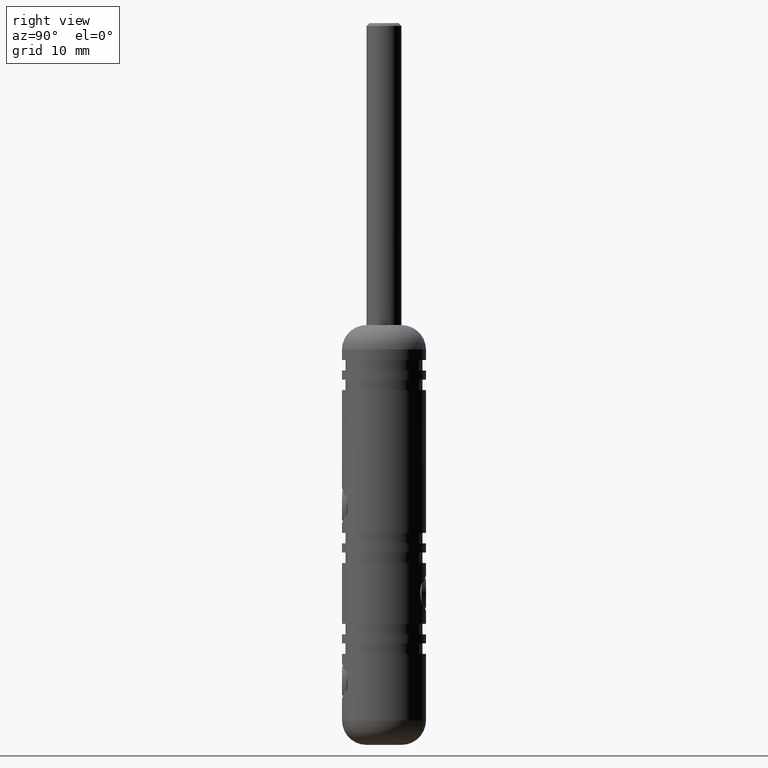
[diagram: clean part render]
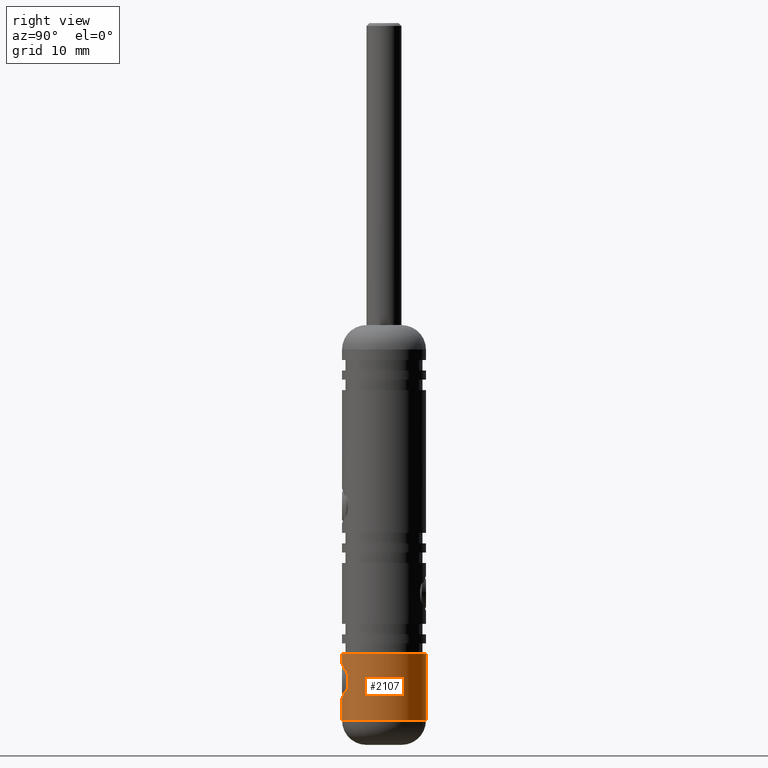
[diagram: same view with one face highlighted and labeled with its STEP entity id]
A machine part, right view. The second image highlights one B-rep face of the part: STEP entity #2107.
In plain terms, the highlighted cylindrical surface (partial cylindrical patch) has radius 6 mm, axis along (0, 0, 1).
Its self-contained STEP definition (entity closure, byte-faithful):
#63 = CARTESIAN_POINT ( 'NONE',  ( 7.347880794884108900E-016, 5.999999999999987600, -26.49999999999999600 ) ) ;
#100 = AXIS2_PLACEMENT_3D ( 'NONE', #5344, #1498, #2830 ) ;
#840 = ORIENTED_EDGE ( 'NONE', *, *, #6714, .F. ) ;
#1082 = EDGE_CURVE ( 'NONE', #4569, #15163, #14730, .T. ) ;
#1337 = CARTESIAN_POINT ( 'NONE',  ( 0.0000000000000000000, -5.999999999999994700, -26.49999999999999600 ) ) ;
#1498 = DIRECTION ( 'NONE',  ( -0.0000000000000000000, 6.241551396031028600E-017, 1.000000000000000000 ) ) ;
#1943 = CARTESIAN_POINT ( 'NONE',  ( 7.347880794884108900E-016, 5.999999999999991100, 30.00000000000000000 ) ) ;
#2021 = CARTESIAN_POINT ( 'NONE',  ( 2.433024516705508200, -5.486245265971621000, -21.51092287905004200 ) ) ;
#2107 = ADVANCED_FACE ( 'NONE', ( #12291 ), #4148, .T. ) ;
#2128 = CARTESIAN_POINT ( 'NONE',  ( 2.499958286588243300, -5.454375176628044400, -20.68457300023110400 ) ) ;
#2182 = CARTESIAN_POINT ( 'NONE',  ( 0.0000000000000000000, -5.999999999999994700, -23.35000000000000500 ) ) ;
#2303 = LINE ( 'NONE', #9792, #5295 ) ;
#2381 = DIRECTION ( 'NONE',  ( -0.0000000000000000000, 6.241551396031028600E-017, 1.000000000000000000 ) ) ;
#2419 = ORIENTED_EDGE ( 'NONE', *, *, #11809, .F. ) ;
#2575 = ORIENTED_EDGE ( 'NONE', *, *, #15019, .T. ) ;
#2830 = DIRECTION ( 'NONE',  ( 0.0000000000000000000, -1.000000000000000000, 0.0000000000000000000 ) ) ;
#3103 = CARTESIAN_POINT ( 'NONE',  ( 1.114788231091694600, -5.897521238554084300, -18.60630985989722700 ) ) ;
#3242 = DIRECTION ( 'NONE',  ( -0.0000000000000000000, 6.241551396031028600E-017, 1.000000000000000000 ) ) ;
#3325 = CARTESIAN_POINT ( 'NONE',  ( 1.654032730495416800, -5.768759283832338300, -22.73162596577045500 ) ) ;
#3366 = CARTESIAN_POINT ( 'NONE',  ( 1.654382943241681400, -5.768663301305688100, -18.96865306849556600 ) ) ;
#3607 = CARTESIAN_POINT ( 'NONE',  ( 0.0000000000000000000, -2.933529156134583500E-015, -17.00000000000000000 ) ) ;
#4148 = CYLINDRICAL_SURFACE ( 'NONE', #100, 5.999999999999991100 ) ;
#4170 = EDGE_CURVE ( 'NONE', #6090, #15163, #2303, .T. ) ;
#4251 = CARTESIAN_POINT ( 'NONE',  ( 0.0000000000000000000, -5.999999999999984900, -17.00000000000000000 ) ) ;
#4531 = AXIS2_PLACEMENT_3D ( 'NONE', #3607, #2381, #13726 ) ;
#4569 = VERTEX_POINT ( 'NONE', #6412 ) ;
#4594 = CARTESIAN_POINT ( 'NONE',  ( 0.0000000000000000000, -3.526476538757531000E-015, -26.49999999999999600 ) ) ;
#4597 = CARTESIAN_POINT ( 'NONE',  ( 1.116433988101044100, -5.897238488634688000, -23.09295871982457300 ) ) ;
#4698 = CARTESIAN_POINT ( 'NONE',  ( 0.6550088422699783500, -5.966320652023279400, -23.26823421433357800 ) ) ;
#5133 = EDGE_CURVE ( 'NONE', #6090, #6102, #14457, .T. ) ;
#5295 = VECTOR ( 'NONE', #11010, 1000.000000000000000 ) ;
#5344 = CARTESIAN_POINT ( 'NONE',  ( 0.0000000000000000000, 0.0000000000000000000, 30.00000000000000000 ) ) ;
#5723 = CARTESIAN_POINT ( 'NONE',  ( 0.3316893159624698700, -5.993028201139781100, -18.36660066118533100 ) ) ;
#5779 = CARTESIAN_POINT ( 'NONE',  ( 2.244635986508915200, -5.564731696079006100, -19.73723607150889600 ) ) ;
#5939 = CARTESIAN_POINT ( 'NONE',  ( 2.418087471178595100, -5.491277066662538800, -20.19431137884591400 ) ) ;
#5993 = CARTESIAN_POINT ( 'NONE',  ( 0.3334989678857753800, -5.992895555958779300, -23.33307707033924300 ) ) ;
#6059 = VECTOR ( 'NONE', #13468, 1000.000000000000000 ) ;
#6090 = VERTEX_POINT ( 'NONE', #1337 ) ;
#6102 = VERTEX_POINT ( 'NONE', #63 ) ;
#6190 = LINE ( 'NONE', #1943, #6798 ) ;
#6412 = CARTESIAN_POINT ( 'NONE',  ( -1.028505488630120000E-020, -5.999999999999993800, -18.35000000000000500 ) ) ;
#6714 = EDGE_CURVE ( 'NONE', #7827, #12697, #12613, .T. ) ;
#6798 = VECTOR ( 'NONE', #3242, 1000.000000000000000 ) ;
#7090 = CARTESIAN_POINT ( 'NONE',  ( 2.500083187475624900, -5.454317928402387500, -21.17895921242124800 ) ) ;
#7187 = CARTESIAN_POINT ( 'NONE',  ( 2.244716869438426100, -5.564698557009178300, -21.96258842965133700 ) ) ;
#7827 = VERTEX_POINT ( 'NONE', #4251 ) ;
#8235 = CARTESIAN_POINT ( 'NONE',  ( -1.028505488630120000E-020, -5.999999999999993800, -18.35000000000000500 ) ) ;
#8443 = CARTESIAN_POINT ( 'NONE',  ( 1.985776905186848600, -5.662680758676486900, -22.37740352867290400 ) ) ;
#8492 = ORIENTED_EDGE ( 'NONE', *, *, #1082, .T. ) ;
#8597 = LINE ( 'NONE', #10894, #6059 ) ;
#8631 = CARTESIAN_POINT ( 'NONE',  ( 0.0000000000000000000, -5.999999999999994700, -23.35000000000000500 ) ) ;
#9278 = CARTESIAN_POINT ( 'NONE',  ( 7.347880794884103000E-016, 5.999999999999979600, -17.00000000000000000 ) ) ;
#9421 = CARTESIAN_POINT ( 'NONE',  ( 0.8121109664669667900, -5.946762593001436100, -18.47989999723239400 ) ) ;
#9531 = CARTESIAN_POINT ( 'NONE',  ( 0.6555787703010417200, -5.966290413473934100, -18.43183818691151600 ) ) ;
#9701 = CARTESIAN_POINT ( 'NONE',  ( 2.166263312547636900, -5.596114381309000400, -19.59167287786404500 ) ) ;
#9749 = CARTESIAN_POINT ( 'NONE',  ( 1.986351737220498600, -5.662472930091971600, -19.32340553465109800 ) ) ;
#9792 = CARTESIAN_POINT ( 'NONE',  ( 0.0000000000000000000, -5.999999999999991100, 30.00000000000000000 ) ) ;
#9800 = CARTESIAN_POINT ( 'NONE',  ( 1.528716671483800100, -5.803628135650790800, -18.86525379076517700 ) ) ;
#10331 = AXIS2_PLACEMENT_3D ( 'NONE', #4594, #12302, #15984 ) ;
#10866 = CARTESIAN_POINT ( 'NONE',  ( 1.260060590211529600, -5.867820848286502400, -18.68471953647101800 ) ) ;
#10894 = CARTESIAN_POINT ( 'NONE',  ( 0.0000000000000000000, -5.999999999999991100, 30.00000000000000000 ) ) ;
#11010 = DIRECTION ( 'NONE',  ( -0.0000000000000000000, 6.241551396031028600E-017, 1.000000000000000000 ) ) ;
#11016 = CARTESIAN_POINT ( 'NONE',  ( 1.259538159729435500, -5.867927242172505100, -23.01556035796438900 ) ) ;
#11809 = EDGE_CURVE ( 'NONE', #4569, #7827, #8597, .T. ) ;
#12210 = CARTESIAN_POINT ( 'NONE',  ( 1.527725331987266100, -5.803883338356246900, -22.83548315273786100 ) ) ;
#12291 = FACE_OUTER_BOUND ( 'NONE', #14771, .T. ) ;
#12302 = DIRECTION ( 'NONE',  ( -0.0000000000000000000, 6.241551396031028600E-017, 1.000000000000000000 ) ) ;
#12359 = CARTESIAN_POINT ( 'NONE',  ( 1.883431010051970200, -5.697990486015797300, -22.50197705159192600 ) ) ;
#12613 = CIRCLE ( 'NONE', #4531, 5.999999999999982200 ) ;
#12697 = VERTEX_POINT ( 'NONE', #9278 ) ;
#12729 = ORIENTED_EDGE ( 'NONE', *, *, #5133, .T. ) ;
#13468 = DIRECTION ( 'NONE',  ( -0.0000000000000000000, 6.241551396031028600E-017, 1.000000000000000000 ) ) ;
#13483 = CARTESIAN_POINT ( 'NONE',  ( 0.8115992888655361200, -5.946860788343247600, -23.22035762342673600 ) ) ;
#13531 = CARTESIAN_POINT ( 'NONE',  ( 2.370252263024601000, -5.512398186896874100, -20.03849616013935300 ) ) ;
#13726 = DIRECTION ( 'NONE',  ( 0.0000000000000000000, -1.000000000000000000, 0.0000000000000000000 ) ) ;
#13851 = ORIENTED_EDGE ( 'NONE', *, *, #4170, .F. ) ;
#14457 = CIRCLE ( 'NONE', #10331, 5.999999999999991100 ) ;
#14503 = CARTESIAN_POINT ( 'NONE',  ( 0.1646041220039585800, -5.999999999999992000, -18.35000000000000500 ) ) ;
#14730 = B_SPLINE_CURVE_WITH_KNOTS ( 'NONE', 3,
 ( #8235, #14503, #5723, #9531, #9421, #3103, #10866, #9800, #3366, #14736, #9749, #9701, #5779, #13531, #5939, #14846, #2128, #7090, #2021, #7187, #16156, #8443, #12359, #3325, #12210, #11016, #4597, #13483, #4698, #5993, #14790, #2182 ),
 .UNSPECIFIED., .F., .F.,
 ( 4, 2, 2, 2, 2, 2, 2, 2, 2, 2, 2, 2, 2, 2, 2, 4 ),
 ( 0.007907415464232896200, 0.008401230926880314700, 0.008895046389527733200, 0.009388861852175150000, 0.009882677314822568500, 0.01037649277746998700, 0.01087030824011740400, 0.01136412370276482200, 0.01185793916541224100, 0.01284557009070707800, 0.01333938555335449500, 0.01383320101600191300, 0.01432701647864933200, 0.01482083194129674800, 0.01531464740394416700, 0.01580846286659158600 ),
 .UNSPECIFIED. ) ;
#14736 = CARTESIAN_POINT ( 'NONE',  ( 1.884182109196805400, -5.697746658645215200, -19.19884677302413000 ) ) ;
#14771 = EDGE_LOOP ( 'NONE', ( #12729, #2575, #840, #2419, #8492, #13851 ) ) ;
#14790 = CARTESIAN_POINT ( 'NONE',  ( 0.1671054223428519200, -5.999999999999994700, -23.35000000000000500 ) ) ;
#14846 = CARTESIAN_POINT ( 'NONE',  ( 2.483167037994902700, -5.462156378440701200, -20.51689934314465100 ) ) ;
#15019 = EDGE_CURVE ( 'NONE', #6102, #12697, #6190, .T. ) ;
#15163 = VERTEX_POINT ( 'NONE', #8631 ) ;
#15984 = DIRECTION ( 'NONE',  ( 0.0000000000000000000, -1.000000000000000000, 0.0000000000000000000 ) ) ;
#16156 = CARTESIAN_POINT ( 'NONE',  ( 2.166378616493327000, -5.596076034317158100, -22.10820314201497900 ) ) ;